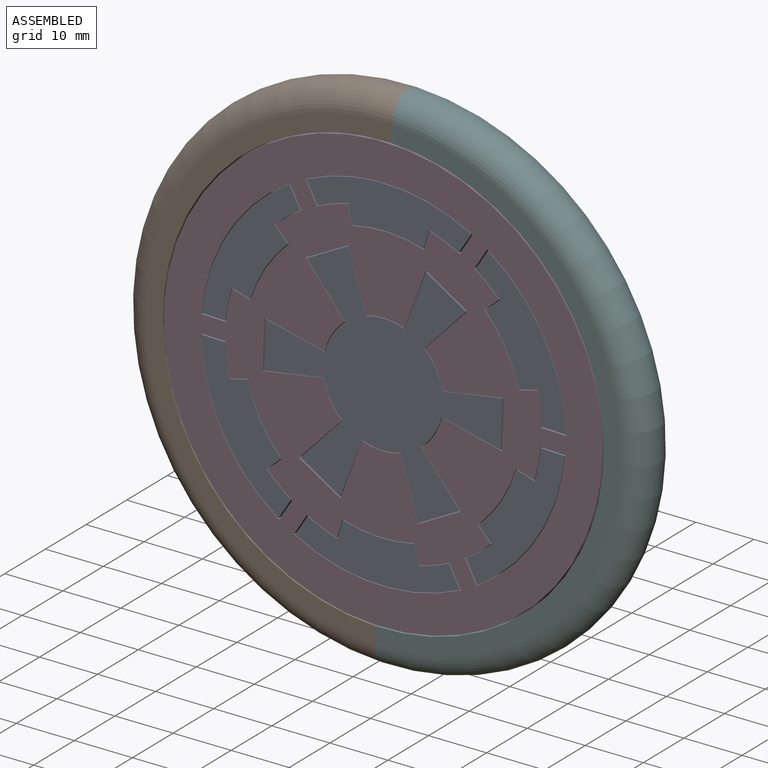
[diagram: assembled view]
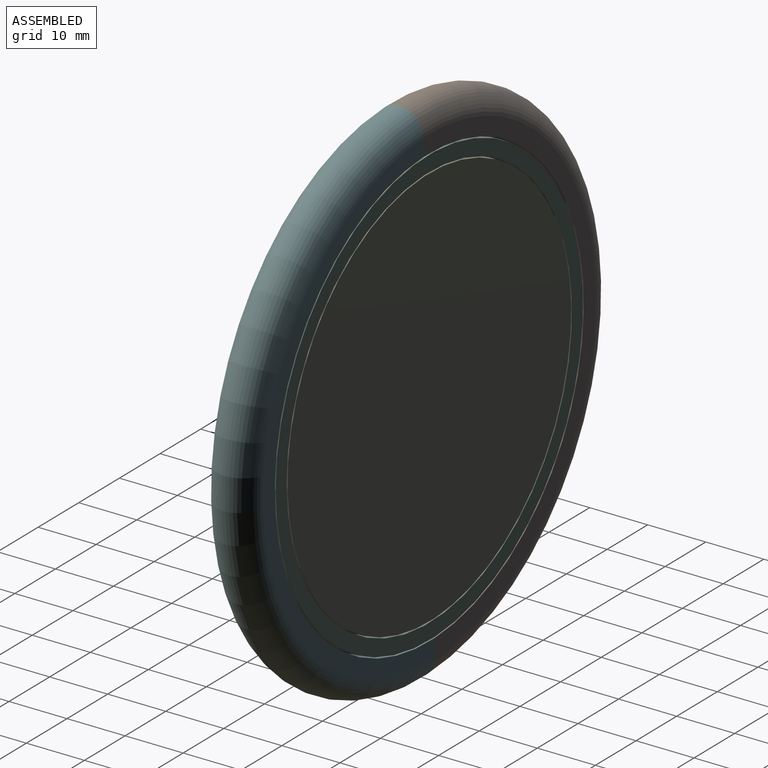
[diagram: assembled view, second angle]
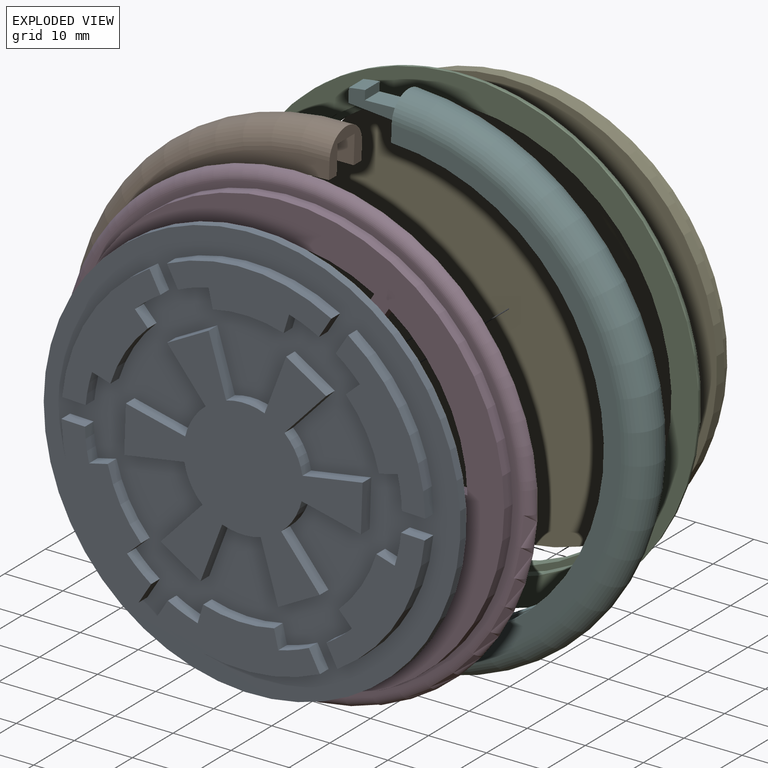
[diagram: exploded view]
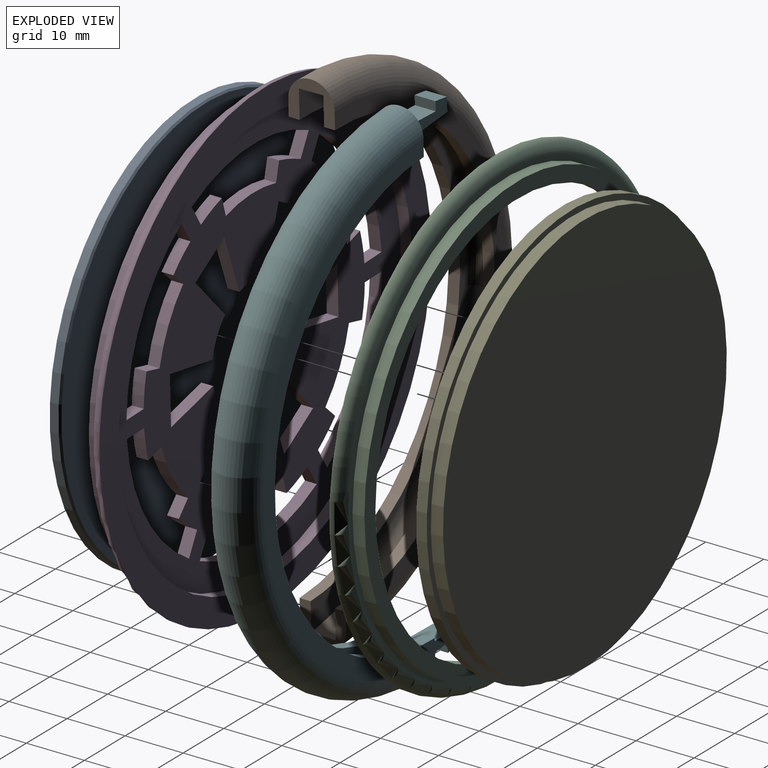
[diagram: exploded view, second angle]
ASSEMBLY  parts=6 mates=10
PART A: 83 faces, bbox 71.8x71.8x4 mm
  f0: plane 71.2x71.2mm, normal (0,0,-1), area 3981.5mm2, adj f82
  f1: cylinder r=35.9mm len=71.8mm, axis (0,0,-1), area 338.3mm2, adj f2,f82
  f2: plane 71.8x71.8mm, normal (0,0,1), area 2418.9mm2, adj f1,f3,f4,f5,f6,f7,f8,f9
  f3: cylinder r=27.3mm len=5.48mm, axis (0,0,-1), area 12mm2, adj f2,f4,f10,f11
  f4: plane 4.06x2.15mm, normal (1,0,0), area 8.7mm2, adj f2,f3,f5,f11
  f5: cylinder r=31.35mm len=24.56mm, axis (0,0,-1), area 63.3mm2, adj f2,f4,f6,f11
  f6: plane 3.51x2.15mm, normal (-0.5,-0.87,0), area 8.7mm2, adj f2,f5,f7,f11
  f7: cylinder r=27.3mm len=4.29mm, axis (0,0,-1), area 12mm2, adj f2,f6,f8,f11
  f8: plane 2.34x2.32mm, normal (-0.71,-0.7,0), area 7.1mm2, adj f2,f7,f9,f11
  f9: cylinder r=24mm len=10.58mm, axis (0,0,-1), area 26.6mm2, adj f2,f8,f10,f11
  f10: plane 3.18x2.15mm, normal (0.96,0.26,0), area 7.1mm2, adj f2,f3,f9,f11
  f11: plane 24.56x16.21mm, normal (0,0,1), area 154.2mm2, adj f3,f4,f5,f6,f7,f8,f9,f10
  f12: plane 7.03x4.06mm, normal (-0.87,0.5,0), area 17.4mm2, adj f2,f13,f35,f36
  f13: plane 9.94x3.38mm, normal (-0.32,-0.95,0), area 22.6mm2, adj f2,f12,f14,f36
  f14: cylinder r=10.3mm len=6.62mm, axis (0,0,-1), area 14.5mm2, adj f2,f13,f15,f36
  f15: plane 9.94x3.38mm, normal (-0.32,0.95,0), area 22.6mm2, adj f2,f14,f16,f36
  f16: plane 7.03x4.06mm, normal (-0.87,-0.5,0), area 17.4mm2, adj f2,f15,f17,f36
  f17: plane 7.89x6.92mm, normal (0.66,-0.75,0), area 22.6mm2, adj f2,f16,f18,f36
  f18: cylinder r=10.3mm len=5.73mm, axis (0,0,-1), area 14.5mm2, adj f2,f17,f19,f36
  f19: plane 10.3x2.15mm, normal (-0.98,0.2,0), area 22.6mm2, adj f2,f18,f20,f36
  f20: plane 8.12x2.15mm, normal (0,-1,0), area 17.4mm2, adj f2,f19,f21,f36
  f21: plane 10.3x2.15mm, normal (0.98,0.2,0), area 22.6mm2, adj f2,f20,f22,f36
  f22: cylinder r=10.3mm len=5.73mm, axis (0,0,-1), area 14.5mm2, adj f2,f21,f23,f36
  f23: plane 7.89x6.92mm, normal (-0.66,-0.75,0), area 22.6mm2, adj f2,f22,f24,f36
  f24: plane 7.03x4.06mm, normal (0.87,-0.5,0), area 17.4mm2, adj f2,f23,f25,f36
  f25: plane 9.94x3.38mm, normal (0.32,0.95,0), area 22.6mm2, adj f2,f24,f26,f36
  f26: cylinder r=10.3mm len=6.62mm, axis (0,0,-1), area 14.5mm2, adj f2,f25,f27,f36
  f27: plane 9.94x3.38mm, normal (0.32,-0.95,0), area 22.6mm2, adj f2,f26,f28,f36
  f28: plane 7.03x4.06mm, normal (0.87,0.5,0), area 17.4mm2, adj f2,f27,f29,f36
  f29: plane 7.89x6.92mm, normal (-0.66,0.75,0), area 22.6mm2, adj f2,f28,f30,f36
  f30: cylinder r=10.3mm len=5.73mm, axis (0,0,-1), area 14.5mm2, adj f2,f29,f31,f36
  f31: plane 10.3x2.15mm, normal (0.98,-0.2,0), area 22.6mm2, adj f2,f30,f32,f36
  f32: plane 8.12x2.15mm, normal (0,1,0), area 17.4mm2, adj f2,f31,f33,f36
  f33: plane 10.3x2.15mm, normal (-0.98,-0.2,0), area 22.6mm2, adj f2,f32,f34,f36
  f34: cylinder r=10.3mm len=5.73mm, axis (0,0,-1), area 14.5mm2, adj f2,f33,f35,f36
  f35: plane 7.89x6.92mm, normal (0.66,0.75,0), area 22.6mm2, adj f2,f12,f34,f36
  f36: plane 40.8x39.39mm, normal (0,0,1), area 705mm2, adj f12,f13,f14,f15,f16,f17,f18,f19
  f37: plane 3.51x2.15mm, normal (0.5,0.87,0), area 8.7mm2, adj f2,f38,f44,f45
  f38: cylinder r=31.35mm len=28.36mm, axis (0,0,-1), area 63.3mm2, adj f2,f37,f39,f45
  f39: plane 3.51x2.15mm, normal (0.5,-0.87,0), area 8.7mm2, adj f2,f38,f40,f45
  f40: cylinder r=27.3mm len=5.2mm, axis (0,0,-1), area 12mm2, adj f2,f39,f41,f45
  f41: plane 3.19x2.15mm, normal (0.25,-0.97,0), area 7.1mm2, adj f2,f40,f42,f45
  f42: cylinder r=24mm len=12.22mm, axis (0,0,-1), area 26.6mm2, adj f2,f41,f43,f45
  f43: plane 3.19x2.15mm, normal (0.25,0.97,0), area 7.1mm2, adj f2,f42,f44,f45
  f44: cylinder r=27.3mm len=5.2mm, axis (0,0,-1), area 12mm2, adj f2,f37,f43,f45
  f45: plane 28.36x8.14mm, normal (0,0,1), area 154.2mm2, adj f37,f38,f39,f40,f41,f42,f43,f44
  f46: plane 3.51x2.15mm, normal (-0.5,0.87,0), area 8.7mm2, adj f2,f47,f53,f54
  f47: cylinder r=31.35mm len=24.56mm, axis (0,0,-1), area 63.3mm2, adj f2,f46,f48,f54
  f48: plane 4.06x2.15mm, normal (1,0,0), area 8.7mm2, adj f2,f47,f49,f54
  f49: cylinder r=27.3mm len=5.48mm, axis (0,0,-1), area 12mm2, adj f2,f48,f50,f54
  f50: plane 3.18x2.15mm, normal (0.96,-0.26,0), area 7.1mm2, adj f2,f49,f51,f54
  f51: cylinder r=24mm len=10.58mm, axis (0,0,-1), area 26.6mm2, adj f2,f50,f52,f54
  f52: plane 2.34x2.32mm, normal (-0.71,0.7,0), area 7.1mm2, adj f2,f51,f53,f54
  f53: cylinder r=27.3mm len=4.29mm, axis (0,0,-1), area 12mm2, adj f2,f46,f52,f54
  f54: plane 24.56x16.21mm, normal (0,0,1), area 154.2mm2, adj f46,f47,f48,f49,f50,f51,f52,f53
  f55: plane 4.06x2.15mm, normal (-1,0,0), area 8.7mm2, adj f2,f56,f62,f63
  f56: cylinder r=31.35mm len=24.56mm, axis (0,0,-1), area 63.3mm2, adj f2,f55,f57,f63
  f57: plane 3.51x2.15mm, normal (0.5,0.87,0), area 8.7mm2, adj f2,f56,f58,f63
  f58: cylinder r=27.3mm len=4.29mm, axis (0,0,-1), area 12mm2, adj f2,f57,f59,f63
  f59: plane 2.34x2.32mm, normal (0.71,0.7,0), area 7.1mm2, adj f2,f58,f60,f63
  f60: cylinder r=24mm len=10.58mm, axis (0,0,-1), area 26.6mm2, adj f2,f59,f61,f63
  f61: plane 3.18x2.15mm, normal (-0.96,-0.26,0), area 7.1mm2, adj f2,f60,f62,f63
  f62: cylinder r=27.3mm len=5.48mm, axis (0,0,-1), area 12mm2, adj f2,f55,f61,f63
  f63: plane 24.56x16.21mm, normal (0,0,1), area 154.2mm2, adj f55,f56,f57,f58,f59,f60,f61,f62
  f64: plane 3.51x2.15mm, normal (-0.5,-0.87,0), area 8.7mm2, adj f2,f65,f71,f72
  f65: cylinder r=31.35mm len=28.36mm, axis (0,0,-1), area 63.3mm2, adj f2,f64,f66,f72
  f66: plane 3.51x2.15mm, normal (-0.5,0.87,0), area 8.7mm2, adj f2,f65,f67,f72
  f67: cylinder r=27.3mm len=5.2mm, axis (0,0,-1), area 12mm2, adj f2,f66,f68,f72
  f68: plane 3.19x2.15mm, normal (-0.25,0.97,0), area 7.1mm2, adj f2,f67,f69,f72
  f69: cylinder r=24mm len=12.22mm, axis (0,0,-1), area 26.6mm2, adj f2,f68,f70,f72
  f70: plane 3.19x2.15mm, normal (-0.25,-0.97,0), area 7.1mm2, adj f2,f69,f71,f72
  f71: cylinder r=27.3mm len=5.2mm, axis (0,0,-1), area 12mm2, adj f2,f64,f70,f72
  f72: plane 28.36x8.14mm, normal (0,0,1), area 154.2mm2, adj f64,f65,f66,f67,f68,f69,f70,f71
  f73: plane 3.51x2.15mm, normal (0.5,-0.87,0), area 8.7mm2, adj f2,f74,f80,f81
  f74: cylinder r=31.35mm len=24.56mm, axis (0,0,-1), area 63.3mm2, adj f2,f73,f75,f81
  f75: plane 4.06x2.15mm, normal (-1,0,0), area 8.7mm2, adj f2,f74,f76,f81
  f76: cylinder r=27.3mm len=5.48mm, axis (0,0,-1), area 12mm2, adj f2,f75,f77,f81
  f77: plane 3.18x2.15mm, normal (-0.96,0.26,0), area 7.1mm2, adj f2,f76,f78,f81
  f78: cylinder r=24mm len=10.58mm, axis (0,0,-1), area 26.6mm2, adj f2,f77,f79,f81
  f79: plane 2.34x2.32mm, normal (0.71,-0.7,0), area 7.1mm2, adj f2,f78,f80,f81
  f80: cylinder r=27.3mm len=4.29mm, axis (0,0,-1), area 12mm2, adj f2,f73,f79,f81
  f81: plane 24.56x16.21mm, normal (0,0,1), area 154.2mm2, adj f73,f74,f75,f76,f77,f78,f79,f80
  f82: cone r=35.6mm half-angle=45deg, axis (0,0,1), area 95.3mm2, adj f0,f1
PART B: 24 faces, bbox 48.7x97.4x8 mm
  f0: cylinder r=38mm len=76mm, axis (0,0,-1), area 236.8mm2, adj f1,f5,f8,f9,f15,f16,f18,f19
  f1: plane 75.67x29.54mm, normal (0,0,-1), area 101.8mm2, adj f0,f2,f15,f19
  f2: torus R=39mm, axis (0,0,-1), area 675.3mm2, adj f1,f3,f15,f19
  f3: plane 75.67x29.54mm, normal (0,0,1), area 101.8mm2, adj f2,f4,f15,f19
  f4: cylinder r=38mm len=76mm, axis (0,0,-1), area 236.8mm2, adj f3,f5,f6,f9,f14,f15,f17,f19
  f5: plane 8x7mm, normal (-1,0,0), area 28.1mm2, adj f0,f4,f6,f7,f8,f17,f18,f23
  f6: plane 82x41mm, normal (0,0,-1), area 372.3mm2, adj f4,f5,f7,f9
  f7: torus R=41mm, axis (0,0,-1), area 1719.1mm2, adj f5,f6,f8,f9
  f8: plane 82x41mm, normal (0,0,1), area 372.3mm2, adj f0,f5,f7,f9
  f9: plane 8x7mm, normal (-1,0,0), area 28.1mm2, adj f0,f4,f6,f7,f8,f13,f14,f16
  f10: cylinder r=44mm len=4.2mm, axis (0,0,1), area 14.5mm2, adj f11,f12,f14,f16
  f11: plane 4.2x2mm, normal (-1,0,0), area 8.4mm2, adj f10,f14,f15,f16
  f12: plane 4.2x1.6mm, normal (1,0,0), area 6.7mm2, adj f10,f13,f14,f16
  f13: plane 6x4.2mm, normal (-0.17,0.99,0), area 25.6mm2, adj f9,f12,f14,f16
  f14: plane 9.48x6.79mm, normal (0,0,1), area 48.9mm2, adj f4,f9,f10,f11,f12,f13,f15
  f15: plane 4.2x4.19mm, normal (-1,0.02,0), area 6.9mm2, adj f0,f1,f2,f3,f4,f11,f14,f16
  f16: plane 9.48x6.79mm, normal (0,0,-1), area 48.9mm2, adj f0,f9,f10,f11,f12,f13,f15
  f17: plane 9.48x6.79mm, normal (0,0,1), area 48.9mm2, adj f4,f5,f19,f20,f21,f22,f23
  f18: plane 9.48x6.79mm, normal (0,0,-1), area 48.9mm2, adj f0,f5,f19,f20,f21,f22,f23
  f19: plane 4.2x4.19mm, normal (-1,-0.02,0), area 6.9mm2, adj f0,f1,f2,f3,f4,f17,f18,f20
  f20: plane 4.2x2mm, normal (-1,0,0), area 8.4mm2, adj f17,f18,f19,f21
  f21: cylinder r=44mm len=4.2mm, axis (0,0,1), area 14.5mm2, adj f17,f18,f20,f22
  f22: plane 4.2x1.6mm, normal (1,0,0), area 6.7mm2, adj f17,f18,f21,f23
  f23: plane 6x4.2mm, normal (-0.17,-0.99,0), area 25.6mm2, adj f5,f17,f18,f22
PART C: 8 faces, bbox 88.3x88.3x5.3 mm
  f0: cylinder r=36.1mm len=72.2mm, axis (0,0,-1), area 431mm2, adj f1,f6
  f1: plane 81.6x81.6mm, normal (0,0,-1), area 1135.5mm2, adj f0,f2
  f2: torus R=38.9mm, axis (0,0,-1), area 752.1mm2, adj f1,f3
  f3: plane 77.8x77.8mm, normal (0,0,1), area 265.1mm2, adj f2,f4
  f4: cylinder r=37.8mm len=75.6mm, axis (0,0,-1), area 486.9mm2, adj f3,f5
  f5: plane 75.6x75.6mm, normal (0,0,1), area 618.4mm2, adj f4,f7
  f6: plane 72.2x72.2mm, normal (0,0,-1), area 223.7mm2, adj f0,f7
  f7: cylinder r=35.1mm len=70.2mm, axis (0,0,-1), area 452.1mm2, adj f5,f6
PART D: 79 faces, bbox 88.3x88.3x5.3 mm
  f0: plane 75.6x75.6mm, normal (0,0,1), area 2789mm2, adj f6,f7,f8,f9,f10,f11,f12,f13
  f1: plane 72.2x72.2mm, normal (0,0,-1), area 2394.3mm2, adj f2,f7,f8,f9,f10,f11,f12,f13
  f2: cylinder r=36.1mm len=72.2mm, axis (0,0,-1), area 431mm2, adj f1,f3
  f3: plane 81.6x81.6mm, normal (0,0,-1), area 1135.5mm2, adj f2,f4
  f4: torus R=38.9mm, axis (0,0,-1), area 752.1mm2, adj f3,f5
  f5: plane 77.8x77.8mm, normal (0,0,1), area 265.1mm2, adj f4,f6
  f6: cylinder r=37.8mm len=75.6mm, axis (0,0,-1), area 486.9mm2, adj f0,f5
  f7: cylinder r=27.2mm len=5.54mm, axis (0,0,-1), area 11.5mm2, adj f0,f1,f8,f14
  f8: plane 4.26x2.05mm, normal (-1,0,0), area 8.7mm2, adj f0,f1,f7,f9
  f9: cylinder r=31.45mm len=24.96mm, axis (0,0,-1), area 61.4mm2, adj f0,f1,f8,f10
  f10: plane 3.69x2.13mm, normal (0.5,0.87,0), area 8.7mm2, adj f0,f1,f9,f11
  f11: cylinder r=27.2mm len=4.36mm, axis (0,0,-1), area 11.5mm2, adj f0,f1,f10,f12
  f12: plane 2.33x2.33mm, normal (0.71,0.71,0), area 6.8mm2, adj f0,f1,f11,f13
  f13: cylinder r=23.9mm len=10.71mm, axis (0,0,-1), area 25.7mm2, adj f0,f1,f12,f14
  f14: plane 3.19x2.05mm, normal (-0.97,-0.26,0), area 6.8mm2, adj f0,f1,f7,f13
  f15: plane 3.69x2.13mm, normal (-0.5,0.87,0), area 8.7mm2, adj f0,f1,f16,f22
  f16: cylinder r=31.45mm len=24.96mm, axis (0,0,-1), area 61.4mm2, adj f0,f1,f15,f17
  f17: plane 4.26x2.05mm, normal (1,0,0), area 8.7mm2, adj f0,f1,f16,f18
  f18: cylinder r=27.2mm len=5.54mm, axis (0,0,-1), area 11.5mm2, adj f0,f1,f17,f19
  f19: plane 3.19x2.05mm, normal (0.97,-0.26,0), area 6.8mm2, adj f0,f1,f18,f20
  f20: cylinder r=23.9mm len=10.71mm, axis (0,0,-1), area 25.7mm2, adj f0,f1,f19,f21
  f21: plane 2.33x2.33mm, normal (-0.71,0.71,0), area 6.8mm2, adj f0,f1,f20,f22
  f22: cylinder r=27.2mm len=4.36mm, axis (0,0,-1), area 11.5mm2, adj f0,f1,f15,f21
  f23: plane 3.69x2.13mm, normal (0.5,0.87,0), area 8.7mm2, adj f0,f1,f24,f30
  f24: cylinder r=31.45mm len=28.82mm, axis (0,0,-1), area 61.4mm2, adj f0,f1,f23,f25
  f25: plane 3.69x2.13mm, normal (0.5,-0.87,0), area 8.7mm2, adj f0,f1,f24,f26
  f26: cylinder r=27.2mm len=5.24mm, axis (0,0,-1), area 11.5mm2, adj f0,f1,f25,f27
  f27: plane 3.19x2.05mm, normal (0.26,-0.97,0), area 6.8mm2, adj f0,f1,f26,f28
  f28: cylinder r=23.9mm len=12.37mm, axis (0,0,-1), area 25.7mm2, adj f0,f1,f27,f29
  f29: plane 3.19x2.05mm, normal (0.26,0.97,0), area 6.8mm2, adj f0,f1,f28,f30
  f30: cylinder r=27.2mm len=5.24mm, axis (0,0,-1), area 11.5mm2, adj f0,f1,f23,f29
  f31: plane 7.27x4.19mm, normal (0.87,-0.5,0), area 17.2mm2, adj f0,f1,f32,f54
  f32: plane 10.09x3.38mm, normal (0.32,0.95,0), area 21.8mm2, adj f0,f1,f31,f33
  f33: cylinder r=10.4mm len=6.6mm, axis (0,0,-1), area 13.8mm2, adj f0,f1,f32,f34
  f34: plane 10.09x3.38mm, normal (0.32,-0.95,0), area 21.8mm2, adj f0,f1,f33,f35
  f35: plane 7.27x4.19mm, normal (0.87,0.5,0), area 17.2mm2, adj f0,f1,f34,f36
  f36: plane 7.97x7.05mm, normal (-0.66,0.75,0), area 21.8mm2, adj f0,f1,f35,f37
  f37: cylinder r=10.4mm len=5.72mm, axis (0,0,-1), area 13.8mm2, adj f0,f1,f36,f38
  f38: plane 10.43x2.12mm, normal (0.98,-0.2,0), area 21.8mm2, adj f0,f1,f37,f39
  f39: plane 8.39x2.05mm, normal (0,1,0), area 17.2mm2, adj f0,f1,f38,f40
  f40: plane 10.43x2.12mm, normal (-0.98,-0.2,0), area 21.8mm2, adj f0,f1,f39,f41
  f41: cylinder r=10.4mm len=5.72mm, axis (0,0,-1), area 13.8mm2, adj f0,f1,f40,f42
  f42: plane 7.97x7.05mm, normal (0.66,0.75,0), area 21.8mm2, adj f0,f1,f41,f43
  f43: plane 7.27x4.19mm, normal (-0.87,0.5,0), area 17.2mm2, adj f0,f1,f42,f44
  f44: plane 10.09x3.38mm, normal (-0.32,-0.95,0), area 21.8mm2, adj f0,f1,f43,f45
  f45: cylinder r=10.4mm len=6.6mm, axis (0,0,-1), area 13.8mm2, adj f0,f1,f44,f46
  f46: plane 10.09x3.38mm, normal (-0.32,0.95,0), area 21.8mm2, adj f0,f1,f45,f47
  f47: plane 7.27x4.19mm, normal (-0.87,-0.5,0), area 17.2mm2, adj f0,f1,f46,f48
  f48: plane 7.97x7.05mm, normal (0.66,-0.75,0), area 21.8mm2, adj f0,f1,f47,f49
  f49: cylinder r=10.4mm len=5.72mm, axis (0,0,-1), area 13.8mm2, adj f0,f1,f48,f50
  f50: plane 10.43x2.12mm, normal (-0.98,0.2,0), area 21.8mm2, adj f0,f1,f49,f51
  f51: plane 8.39x2.05mm, normal (0,-1,0), area 17.2mm2, adj f0,f1,f50,f52
  f52: plane 10.43x2.12mm, normal (0.98,0.2,0), area 21.8mm2, adj f0,f1,f51,f53
  f53: cylinder r=10.4mm len=5.72mm, axis (0,0,-1), area 13.8mm2, adj f0,f1,f52,f54
  f54: plane 7.97x7.05mm, normal (-0.66,-0.75,0), area 21.8mm2, adj f0,f1,f31,f53
  f55: plane 3.69x2.13mm, normal (-0.5,-0.87,0), area 8.7mm2, adj f0,f1,f56,f62
  f56: cylinder r=31.45mm len=28.82mm, axis (0,0,-1), area 61.4mm2, adj f0,f1,f55,f57
  f57: plane 3.69x2.13mm, normal (-0.5,0.87,0), area 8.7mm2, adj f0,f1,f56,f58
  f58: cylinder r=27.2mm len=5.24mm, axis (0,0,-1), area 11.5mm2, adj f0,f1,f57,f59
  f59: plane 3.19x2.05mm, normal (-0.26,0.97,0), area 6.8mm2, adj f0,f1,f58,f60
  f60: cylinder r=23.9mm len=12.37mm, axis (0,0,-1), area 25.7mm2, adj f0,f1,f59,f61
  f61: plane 3.19x2.05mm, normal (-0.26,-0.97,0), area 6.8mm2, adj f0,f1,f60,f62
  f62: cylinder r=27.2mm len=5.24mm, axis (0,0,-1), area 11.5mm2, adj f0,f1,f55,f61
  f63: plane 3.69x2.13mm, normal (0.5,-0.87,0), area 8.7mm2, adj f0,f1,f64,f70
  f64: cylinder r=31.45mm len=24.96mm, axis (0,0,-1), area 61.4mm2, adj f0,f1,f63,f65
  f65: plane 4.26x2.05mm, normal (-1,0,0), area 8.7mm2, adj f0,f1,f64,f66
  f66: cylinder r=27.2mm len=5.54mm, axis (0,0,-1), area 11.5mm2, adj f0,f1,f65,f67
  f67: plane 3.19x2.05mm, normal (-0.97,0.26,0), area 6.8mm2, adj f0,f1,f66,f68
  f68: cylinder r=23.9mm len=10.71mm, axis (0,0,-1), area 25.7mm2, adj f0,f1,f67,f69
  f69: plane 2.33x2.33mm, normal (0.71,-0.71,0), area 6.8mm2, adj f0,f1,f68,f70
  f70: cylinder r=27.2mm len=4.36mm, axis (0,0,-1), area 11.5mm2, adj f0,f1,f63,f69
  f71: plane 4.26x2.05mm, normal (1,0,0), area 8.7mm2, adj f0,f1,f72,f78
  f72: cylinder r=31.45mm len=24.96mm, axis (0,0,-1), area 61.4mm2, adj f0,f1,f71,f73
  f73: plane 3.69x2.13mm, normal (-0.5,-0.87,0), area 8.7mm2, adj f0,f1,f72,f74
  f74: cylinder r=27.2mm len=4.36mm, axis (0,0,-1), area 11.5mm2, adj f0,f1,f73,f75
  f75: plane 2.33x2.33mm, normal (-0.71,-0.71,0), area 6.8mm2, adj f0,f1,f74,f76
  f76: cylinder r=23.9mm len=10.71mm, axis (0,0,-1), area 25.7mm2, adj f0,f1,f75,f77
  f77: plane 3.19x2.05mm, normal (0.97,0.26,0), area 6.8mm2, adj f0,f1,f76,f78
  f78: cylinder r=27.2mm len=5.54mm, axis (0,0,-1), area 11.5mm2, adj f0,f1,f71,f77
PART E: 5 faces, bbox 71.8x71.8x4 mm
  f0: plane 71.8x71.8mm, normal (0,0,-1), area 4048.9mm2, adj f1
  f1: cylinder r=35.9mm len=71.8mm, axis (0,0,-1), area 417.3mm2, adj f0,f2
  f2: plane 71.8x71.8mm, normal (0,0,1), area 222.4mm2, adj f1,f3
  f3: cylinder r=34.9mm len=69.8mm, axis (0,0,-1), area 460.5mm2, adj f2,f4
  f4: plane 69.8x69.8mm, normal (0,0,1), area 3826.5mm2, adj f3
PART F: 24 faces, bbox 97.4x57.7x8 mm
  f0: plane 82x41mm, normal (0,0,-1), area 372.3mm2, adj f1,f17,f18,f19
  f1: torus R=41mm, axis (0,0,-1), area 1719.1mm2, adj f0,f2,f18,f19
  f2: plane 82x41mm, normal (0,0,1), area 372.3mm2, adj f1,f13,f18,f19
  f3: plane 9x3.6mm, normal (1,-0.05,0), area 17.1mm2, adj f4,f15,f18,f22,f23
  f4: plane 3.6x2.4mm, normal (0,-1,0), area 8.6mm2, adj f3,f5,f22,f23
  f5: cylinder r=44mm len=3.6mm, axis (0,0,-1), area 10.2mm2, adj f4,f6,f22,f23
  f6: plane 3.6x1.6mm, normal (0,1,0), area 5.8mm2, adj f5,f7,f22,f23
  f7: plane 6.2x3.6mm, normal (-1,-0.07,0), area 22.4mm2, adj f6,f18,f22,f23
  f8: plane 9x3.6mm, normal (-1,-0.05,0), area 17.1mm2, adj f10,f15,f19,f20,f21
  f9: plane 6.2x3.6mm, normal (1,-0.07,0), area 22.4mm2, adj f12,f19,f20,f21
  f10: plane 3.6x2.4mm, normal (0,-1,0), area 8.6mm2, adj f8,f11,f20,f21
  f11: cylinder r=44mm len=3.6mm, axis (0,0,-1), area 10.2mm2, adj f10,f12,f20,f21
  f12: plane 3.6x1.6mm, normal (0,1,0), area 5.8mm2, adj f9,f11,f20,f21
  f13: cylinder r=38mm len=76mm, axis (0,0,-1), area 238.8mm2, adj f2,f14,f18,f19
  f14: plane 78x39mm, normal (0,0,-1), area 121mm2, adj f13,f15,f18,f19
  f15: torus R=39mm, axis (0,0,-1), area 829mm2, adj f3,f8,f14,f16,f18,f19
  f16: plane 78x39mm, normal (0,0,1), area 121mm2, adj f15,f17,f18,f19
  f17: cylinder r=38mm len=76mm, axis (0,0,-1), area 238.8mm2, adj f0,f16,f18,f19
  f18: plane 8x7mm, normal (0,-1,0), area 32.7mm2, adj f0,f1,f2,f3,f7,f13,f14,f15
  f19: plane 8x7mm, normal (0,-1,0), area 32.7mm2, adj f0,f1,f2,f8,f9,f13,f14,f15
  f20: plane 9x3.36mm, normal (0,0,-1), area 18.9mm2, adj f8,f9,f10,f11,f12,f19
  f21: plane 9x3.36mm, normal (0,0,1), area 18.9mm2, adj f8,f9,f10,f11,f12,f19
  f22: plane 9x3.36mm, normal (0,0,-1), area 18.9mm2, adj f3,f4,f5,f6,f7,f18
  f23: plane 9x3.36mm, normal (0,0,1), area 18.9mm2, adj f3,f4,f5,f6,f7,f18
PLACE A rot(axis=(0.59,-0.57,0.57),118.8deg) t=(-4.82,3.97,0.17)mm
PLACE B rot(axis=(-0.01,-0.71,-0.71),178.6deg) t=(-4.82,4.02,0.17)mm
PLACE C rot(axis=(-0.59,-0.57,-0.57),118.8deg) t=(-4.82,4.07,0.17)mm
PLACE D rot(axis=(0.59,-0.57,0.57),118.8deg) t=(-4.82,3.97,0.17)mm
PLACE E rot(axis=(-0.59,-0.57,-0.57),118.8deg) t=(-4.82,4.07,0.17)mm
PLACE F rot(axis=(-0.59,-0.57,-0.57),118.8deg) t=(-4.82,4.02,0.17)mm fixed
MATE cylindrical B.f10 <-> F.f5  axis (0,1,0) through (-4.82,4.02,0.17)mm
MATE planar E.f3 <-> B.f8  axis (0,1,0) through (-4.82,8.02,0.17)mm
MATE cylindrical A.f1 <-> D.f2  axis (0,1,0) through (-4.82,2.92,0.17)mm
MATE parallel B.f5 <-> F.f19  axis (1,0,-0.04) through (-3.35,4.02,41.75)mm
MATE planar F.f2 <-> B.f8  axis (0,1,0) through (-3.43,8.02,39.65)mm
MATE planar C.f0 <-> F.f2  axis (0,1,0) through (-4.82,8.02,0.17)mm
MATE cylindrical F.f1 <-> C.f0  axis (0,-1,0) through (-4.82,7.02,0.17)mm
MATE cylindrical F.f1 <-> D.f2  axis (0,-1,0) through (-4.82,1.02,0.17)mm
MATE planar D.f28 <-> F.f0  axis (0,-1,0) through (-4.82,0.02,0.17)mm
MATE cylindrical E.f3 <-> C.f7  axis (0,-1,0) through (-4.82,6.97,0.17)mm
